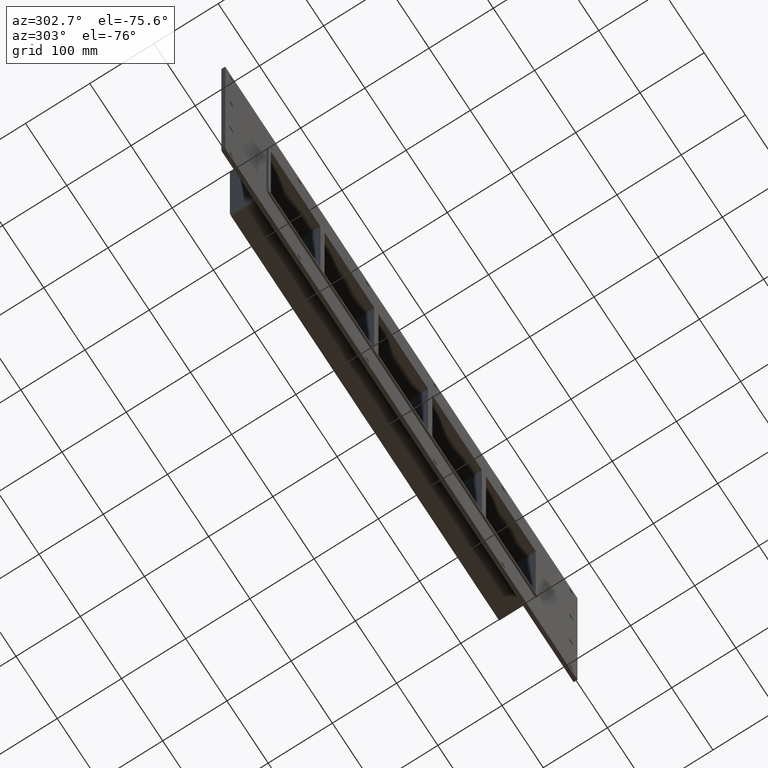
[diagram: clean part render]
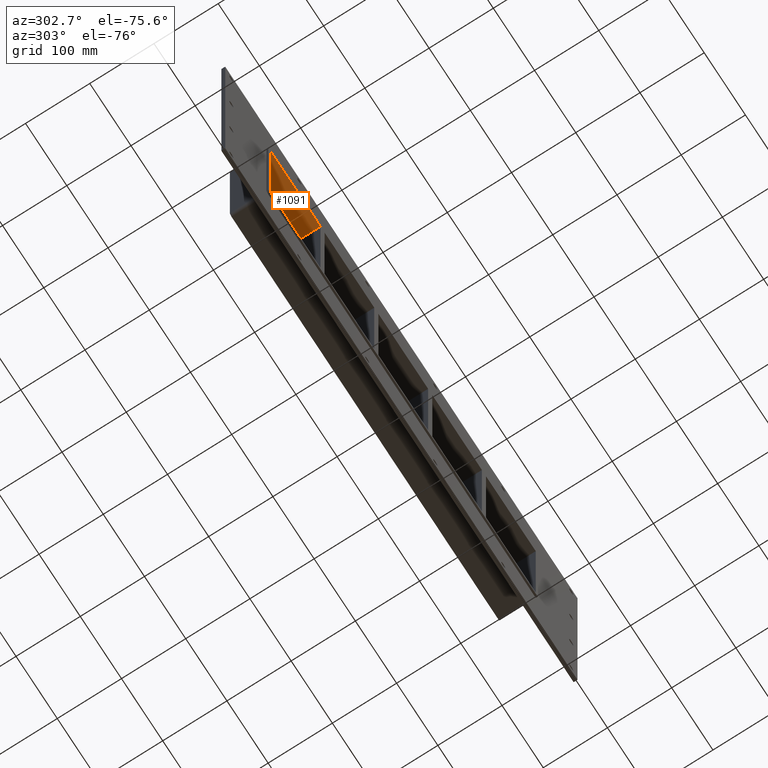
[diagram: same view with one face highlighted and labeled with its STEP entity id]
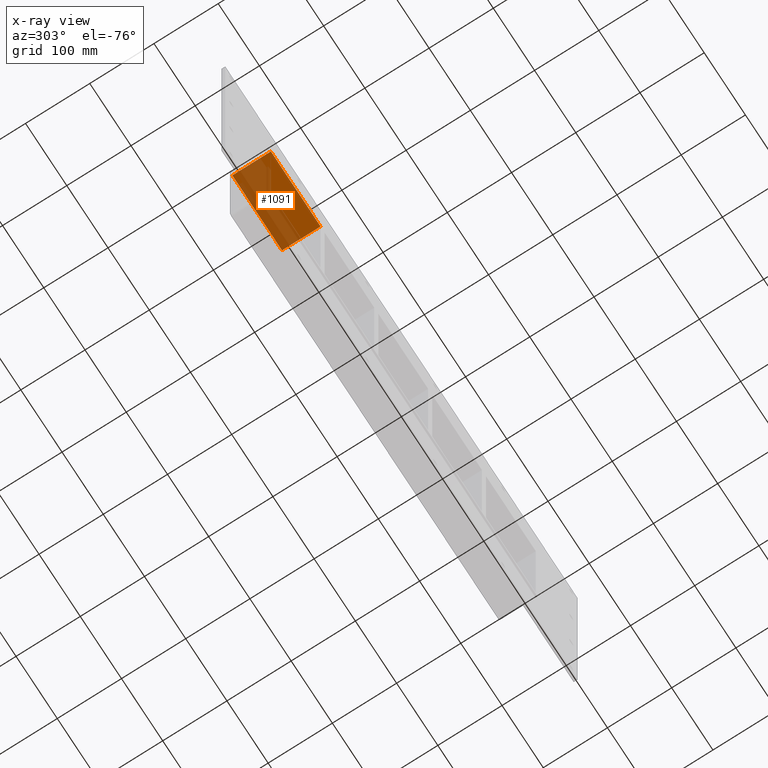
[diagram: x-ray of the same camera — body ghosted, the highlighted face saturated]
A machine part, auxiliary view. The second image highlights one B-rep face of the part: STEP entity #1091.
The next image is the same camera in x-ray: the body ghosted, the highlighted face saturated — about 56% of this face is hidden behind the body in this view.
In plain terms, the highlighted planar face has unit normal (0, 0, 1).
Its self-contained STEP definition (entity closure, byte-faithful):
#975=CARTESIAN_POINT('',(-200.75000000000145,-3.0,108.99999999999999));
#976=VERTEX_POINT('',#975);
#983=CARTESIAN_POINT('',(-200.75000000000145,57.0,108.99999999999999));
#984=VERTEX_POINT('',#983);
#985=CARTESIAN_POINT('',(-200.75000000000145,57.000000000000007,108.99999999999999));
#986=DIRECTION('',(0.0,-1.0,0.0));
#987=VECTOR('',#986,60.000000000000007);
#988=LINE('',#985,#987);
#989=EDGE_CURVE('',#984,#976,#988,.T.);
#1061=CARTESIAN_POINT('',(-321.25000000000006,0.0,109.0));
#1062=DIRECTION('',(0.0,0.0,1.0));
#1063=DIRECTION('',(1.0,0.0,0.0));
#1064=AXIS2_PLACEMENT_3D('',#1061,#1062,#1063);
#1065=PLANE('',#1064);
#1066=ORIENTED_EDGE('',*,*,#989,.T.);
#1067=CARTESIAN_POINT('',(-321.25000000000006,-3.0,108.99999999999999));
#1068=VERTEX_POINT('',#1067);
#1069=CARTESIAN_POINT('',(-321.25000000000006,-3.0,109.0));
#1070=DIRECTION('',(1.0,0.0,0.0));
#1071=VECTOR('',#1070,120.49999999999861);
#1072=LINE('',#1069,#1071);
#1073=EDGE_CURVE('',#1068,#976,#1072,.T.);
#1074=ORIENTED_EDGE('',*,*,#1073,.F.);
#1075=CARTESIAN_POINT('',(-321.25000000000006,57.0,108.99999999999999));
#1076=VERTEX_POINT('',#1075);
#1077=CARTESIAN_POINT('',(-321.25000000000006,-3.0,109.0));
#1078=DIRECTION('',(0.0,1.0,0.0));
#1079=VECTOR('',#1078,60.0);
#1080=LINE('',#1077,#1079);
#1081=EDGE_CURVE('',#1068,#1076,#1080,.T.);
#1082=ORIENTED_EDGE('',*,*,#1081,.T.);
#1083=CARTESIAN_POINT('',(-200.75000000000145,57.0,109.0));
#1084=DIRECTION('',(-1.0,0.0,0.0));
#1085=VECTOR('',#1084,120.49999999999861);
#1086=LINE('',#1083,#1085);
#1087=EDGE_CURVE('',#984,#1076,#1086,.T.);
#1088=ORIENTED_EDGE('',*,*,#1087,.F.);
#1089=EDGE_LOOP('',(#1066,#1074,#1082,#1088));
#1090=FACE_OUTER_BOUND('',#1089,.T.);
#1091=ADVANCED_FACE('',(#1090),#1065,.F.);